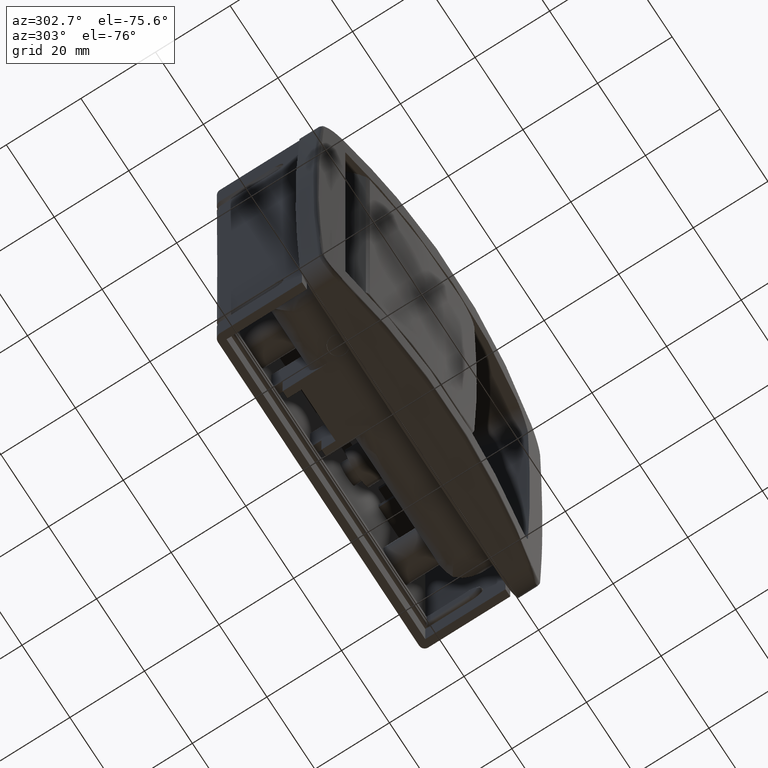
[diagram: clean part render]
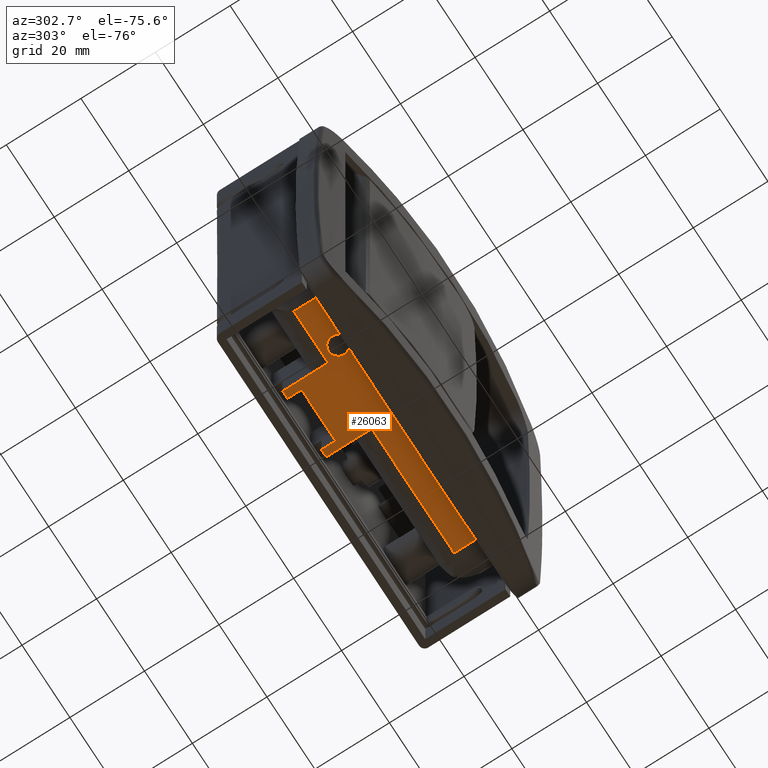
[diagram: same view with one face highlighted and labeled with its STEP entity id]
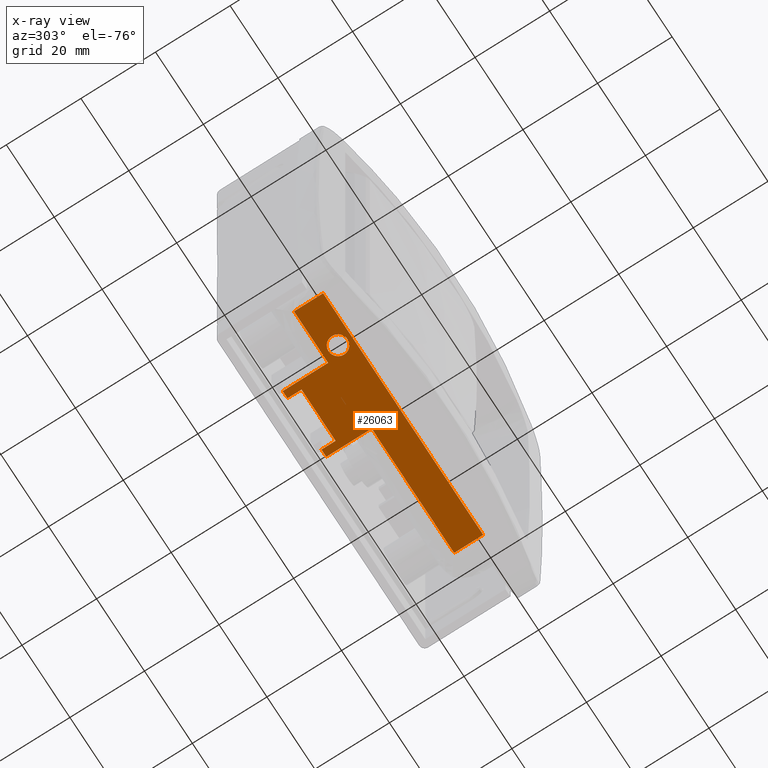
[diagram: x-ray of the same camera — body ghosted, the highlighted face saturated]
A machine part, auxiliary view. The second image highlights one B-rep face of the part: STEP entity #26063.
The next image is the same camera in x-ray: the body ghosted, the highlighted face saturated — about 0% of this face is hidden behind the body in this view.
In plain terms, the highlighted face is a freeform B-spline surface patch.
Its self-contained STEP definition (entity closure, byte-faithful):
#20635=CARTESIAN_POINT('',(23.893221239034439,1.991723662467409,-56.999999999673989));
#20636=VERTEX_POINT('',#20635);
#20642=CARTESIAN_POINT('',(21.999995825361040,1.150000000003522,-56.999999999673989));
#20643=VERTEX_POINT('',#20642);
#20644=CARTESIAN_POINT('',(23.893221239034439,1.991723662467409,-56.999999999673989));
#20645=CARTESIAN_POINT('',(23.729502275315941,1.810147493549375,-56.999999999674010));
#20646=CARTESIAN_POINT('',(23.401150699360642,1.537737943167668,-56.999999999673932));
#20647=CARTESIAN_POINT('',(22.755523859658322,1.230233375381703,-56.999999999674067));
#20648=CARTESIAN_POINT('',(22.288960967272420,1.149787930046870,-56.999999999673882));
#20649=CARTESIAN_POINT('',(21.999995825361040,1.150000000003522,-56.999999999673989));
#20650=B_SPLINE_CURVE_WITH_KNOTS('',3,(#20644,#20645,#20646,#20647,#20648,#20649),.UNSPECIFIED.,.F.,.U.,(4,1,1,4),(0.000000061027638,0.733457412275170,1.266844821769885,2.133663060100518),.UNSPECIFIED.);
#20651=EDGE_CURVE('',#20636,#20643,#20650,.T.);
#20653=CARTESIAN_POINT('',(19.449999999988751,3.700000000000105,-56.999999999674003));
#20654=VERTEX_POINT('',#20653);
#20655=CARTESIAN_POINT('',(21.999995825361040,1.150000000003522,-56.999999999673989));
#20656=CARTESIAN_POINT('',(21.666168371717049,1.149661999855580,-56.999999999674003));
#20657=CARTESIAN_POINT('',(21.061363360657690,1.270507558247340,-56.999999999674003));
#20658=CARTESIAN_POINT('',(20.395873997711629,1.680684311064813,-56.999999999674003));
#20659=CARTESIAN_POINT('',(19.976755536357391,2.121062805138263,-56.999999999674102));
#20660=CARTESIAN_POINT('',(19.685135151899331,2.581512528659528,-56.999999999673761));
#20661=CARTESIAN_POINT('',(19.493944012929671,3.115859006964239,-56.999999999674721));
#20662=CARTESIAN_POINT('',(19.449974399034350,3.512244155003712,-56.999999999673527));
#20663=CARTESIAN_POINT('',(19.449999999988751,3.700000000000105,-56.999999999674003));
#20664=B_SPLINE_CURVE_WITH_KNOTS('',3,(#20655,#20656,#20657,#20658,#20659,#20660,#20661,#20662,#20663),.UNSPECIFIED.,.F.,.U.,(4,1,1,1,1,1,4),(0.000000267692590,1.001407399888613,1.815097554782990,2.315747978024668,2.816451116207232,3.442346040555866,4.005628795123177),.UNSPECIFIED.);
#20665=EDGE_CURVE('',#20643,#20654,#20664,.T.);
#20667=CARTESIAN_POINT('',(22.000004174616461,6.249999999996689,-56.999999999674003));
#20668=VERTEX_POINT('',#20667);
#20669=CARTESIAN_POINT('',(19.449999999988751,3.700000000000105,-56.999999999674003));
#20670=CARTESIAN_POINT('',(19.449918858847440,3.929489028375675,-56.999999999673967));
#20671=CARTESIAN_POINT('',(19.509546651155439,4.367554195442644,-56.999999999674053));
#20672=CARTESIAN_POINT('',(19.742811837590718,4.930741767567115,-56.999999999673982));
#20673=CARTESIAN_POINT('',(20.080811128352391,5.410625156018187,-56.999999999673932));
#20674=CARTESIAN_POINT('',(20.532430085985659,5.820027348702046,-56.999999999674174));
#20675=CARTESIAN_POINT('',(21.186485147007371,6.159380354129319,-56.999999999673577));
#20676=CARTESIAN_POINT('',(21.707908901889461,6.250203442165448,-56.999999999674273));
#20677=CARTESIAN_POINT('',(22.000004174616461,6.249999999996689,-56.999999999674003));
#20678=B_SPLINE_CURVE_WITH_KNOTS('',3,(#20669,#20670,#20671,#20672,#20673,#20674,#20675,#20676,#20677),.UNSPECIFIED.,.F.,.U.,(4,1,1,1,1,1,4),(0.000000261976936,0.688449582759634,1.314367559688738,1.815099684209692,2.440897709591408,3.129402909542302,4.005633501019005),.UNSPECIFIED.);
#20679=EDGE_CURVE('',#20654,#20668,#20678,.T.);
#20681=CARTESIAN_POINT('',(24.336766447220899,4.720796980888254,-56.999999999674003));
#20682=VERTEX_POINT('',#20681);
#20683=CARTESIAN_POINT('',(22.000004174616461,6.249999999996689,-56.999999999674003));
#20684=CARTESIAN_POINT('',(22.277069888330601,6.250120494004303,-56.999999999674081));
#20685=CARTESIAN_POINT('',(22.846535964106199,6.156352707380149,-56.999999999673904));
#20686=CARTESIAN_POINT('',(23.491538874404789,5.805716528772405,-56.999999999674010));
#20687=CARTESIAN_POINT('',(24.006506257959192,5.315485538952853,-56.999999999674451));
#20688=CARTESIAN_POINT('',(24.232133113683350,4.960654065385267,-56.999999999673712));
#20689=CARTESIAN_POINT('',(24.336766447220899,4.720796980888254,-56.999999999674003));
#20690=B_SPLINE_CURVE_WITH_KNOTS('',3,(#20683,#20684,#20685,#20686,#20687,#20688,#20689),.UNSPECIFIED.,.F.,.U.,(4,1,1,1,4),(0.000000140330069,0.831191755057172,1.708549230352310,2.170319199229688,2.955330010595188),.UNSPECIFIED.);
#20691=EDGE_CURVE('',#20668,#20682,#20690,.T.);
#20726=CARTESIAN_POINT('',(24.549999999988749,3.700000000000105,-56.999999999674003));
#20727=VERTEX_POINT('',#20726);
#20728=CARTESIAN_POINT('',(24.336766447220899,4.720796980888254,-56.999999999674003));
#20729=CARTESIAN_POINT('',(24.477109222618871,4.400041884455482,-56.999999999673989));
#20730=CARTESIAN_POINT('',(24.550297077752830,4.050130629316390,-56.999999999674060));
#20731=CARTESIAN_POINT('',(24.549999999988749,3.700000000000105,-56.999999999674003));
#20732=B_SPLINE_CURVE_WITH_KNOTS('',3,(#20728,#20729,#20730,#20731),.UNSPECIFIED.,.F.,.U.,(4,4),(0.000000017337975,1.050266410184020),.UNSPECIFIED.);
#20733=EDGE_CURVE('',#20682,#20727,#20732,.T.);
#20735=CARTESIAN_POINT('',(24.549999999988749,3.700000000000105,-56.999999999674003));
#20736=CARTESIAN_POINT('',(24.550215022640540,3.407477773891363,-56.999999999673932));
#20737=CARTESIAN_POINT('',(24.441367642098928,2.783669143875820,-56.999999999674053));
#20738=CARTESIAN_POINT('',(24.115609719687431,2.237620208241991,-56.999999999674017));
#20739=CARTESIAN_POINT('',(23.893221239034439,1.991723662467409,-56.999999999673989));
#20740=B_SPLINE_CURVE_WITH_KNOTS('',3,(#20735,#20736,#20737,#20738,#20739),.UNSPECIFIED.,.F.,.U.,(4,1,4),(0.000000061381578,0.877505535624873,1.871972732722237),.UNSPECIFIED.);
#20741=EDGE_CURVE('',#20727,#20636,#20740,.T.);
#23207=CARTESIAN_POINT('',(26.234088067961451,16.200000000005250,-56.999999999697202));
#23208=VERTEX_POINT('',#23207);
#23209=CARTESIAN_POINT('',(40.434088068140049,16.200000000005250,-56.999999999615603));
#23210=VERTEX_POINT('',#23209);
#23211=CARTESIAN_POINT('',(26.234088067961451,16.200000000005250,-56.999999999697202));
#23212=CARTESIAN_POINT('',(40.434088068140049,16.200000000005250,-56.999999999615603));
#23213=QUASI_UNIFORM_CURVE('',1,(#23211,#23212),.UNSPECIFIED.,.F.,.U.);
#23214=EDGE_CURVE('',#23208,#23210,#23213,.T.);
#23624=CARTESIAN_POINT('',(76.855638553449808,7.800000000000249,-56.999999999674003));
#23625=VERTEX_POINT('',#23624);
#23659=CARTESIAN_POINT('',(42.434088068140049,7.800000000000270,-56.999999999674003));
#23660=VERTEX_POINT('',#23659);
#23661=CARTESIAN_POINT('',(42.434088068140049,7.800000000000270,-56.999999999674003));
#23662=CARTESIAN_POINT('',(76.855638553449808,7.800000000000249,-56.999999999674003));
#23663=QUASI_UNIFORM_CURVE('',1,(#23661,#23662),.UNSPECIFIED.,.F.,.U.);
#23664=EDGE_CURVE('',#23660,#23625,#23663,.T.);
#23826=CARTESIAN_POINT('',(24.234088068140050,7.800000000000270,-56.999999999616300));
#23827=VERTEX_POINT('',#23826);
#23843=CARTESIAN_POINT('',(9.983683746465450,7.800000000000249,-56.999999999674003));
#23844=VERTEX_POINT('',#23843);
#23845=CARTESIAN_POINT('',(9.983683746465450,7.800000000000249,-56.999999999674003));
#23846=CARTESIAN_POINT('',(24.234088068140050,7.800000000000270,-56.999999999616300));
#23847=QUASI_UNIFORM_CURVE('',1,(#23845,#23846),.UNSPECIFIED.,.F.,.U.);
#23848=EDGE_CURVE('',#23844,#23827,#23847,.T.);
#24017=CARTESIAN_POINT('',(42.434088068140099,20.0,-56.999999999615000));
#24018=VERTEX_POINT('',#24017);
#24019=CARTESIAN_POINT('',(42.434088068140049,7.800000000000270,-56.999999999674003));
#24020=CARTESIAN_POINT('',(42.434088068140099,20.0,-56.999999999615000));
#24021=QUASI_UNIFORM_CURVE('',1,(#24019,#24020),.UNSPECIFIED.,.F.,.U.);
#24022=EDGE_CURVE('',#23660,#24018,#24021,.T.);
#24116=CARTESIAN_POINT('',(40.434088068140099,20.0,-56.999999999615000));
#24117=VERTEX_POINT('',#24116);
#24125=CARTESIAN_POINT('',(42.434088068140099,20.0,-56.999999999615000));
#24126=CARTESIAN_POINT('',(40.434088068140099,20.0,-56.999999999615000));
#24127=QUASI_UNIFORM_CURVE('',1,(#24125,#24126),.UNSPECIFIED.,.F.,.U.);
#24128=EDGE_CURVE('',#24018,#24117,#24127,.T.);
#24138=CARTESIAN_POINT('',(24.234088068140100,20.0,-56.999999999615000));
#24139=VERTEX_POINT('',#24138);
#24140=CARTESIAN_POINT('',(24.234088068140050,7.800000000000270,-56.999999999616300));
#24141=CARTESIAN_POINT('',(24.234088068140100,20.0,-56.999999999615000));
#24142=QUASI_UNIFORM_CURVE('',1,(#24140,#24141),.UNSPECIFIED.,.F.,.U.);
#24143=EDGE_CURVE('',#23827,#24139,#24142,.T.);
#24267=CARTESIAN_POINT('',(26.234088068140100,20.0,-56.999999999615000));
#24268=VERTEX_POINT('',#24267);
#24274=CARTESIAN_POINT('',(26.234088068140100,20.0,-56.999999999615000));
#24275=CARTESIAN_POINT('',(24.234088068140100,20.0,-56.999999999615000));
#24276=QUASI_UNIFORM_CURVE('',1,(#24274,#24275),.UNSPECIFIED.,.F.,.U.);
#24277=EDGE_CURVE('',#24268,#24139,#24276,.T.);
#24788=CARTESIAN_POINT('',(9.983683746465450,5.675067E-014,-56.999999999674003));
#24789=VERTEX_POINT('',#24788);
#24790=CARTESIAN_POINT('',(9.983683746465450,7.800000000000249,-56.999999999674003));
#24791=CARTESIAN_POINT('',(9.983683746465450,5.675067E-014,-56.999999999674003));
#24792=QUASI_UNIFORM_CURVE('',1,(#24790,#24791),.UNSPECIFIED.,.F.,.U.);
#24793=EDGE_CURVE('',#23844,#24789,#24792,.T.);
#25034=CARTESIAN_POINT('',(76.855638553449808,-3.197442E-011,-56.999999999674003));
#25035=VERTEX_POINT('',#25034);
#25036=CARTESIAN_POINT('',(76.855638553449808,-3.197442E-011,-56.999999999674003));
#25037=CARTESIAN_POINT('',(76.855638553449808,7.800000000000249,-56.999999999674003));
#25038=QUASI_UNIFORM_CURVE('',1,(#25036,#25037),.UNSPECIFIED.,.F.,.U.);
#25039=EDGE_CURVE('',#25035,#23625,#25038,.T.);
#25329=CARTESIAN_POINT('',(9.983683746465450,5.675067E-014,-56.999999999674003));
#25330=CARTESIAN_POINT('',(76.855638553449808,-3.197442E-011,-56.999999999674003));
#25331=QUASI_UNIFORM_CURVE('',1,(#25329,#25330),.UNSPECIFIED.,.F.,.U.);
#25332=EDGE_CURVE('',#24789,#25035,#25331,.T.);
#26005=CARTESIAN_POINT('',(40.434088068140049,16.200000000005250,-56.999999999615603));
#26006=CARTESIAN_POINT('',(40.434088068140099,20.0,-56.999999999615000));
#26007=QUASI_UNIFORM_CURVE('',1,(#26005,#26006),.UNSPECIFIED.,.F.,.U.);
#26008=EDGE_CURVE('',#23210,#24117,#26007,.T.);
#26024=CARTESIAN_POINT('',(26.234088067961451,16.200000000005250,-56.999999999697202));
#26025=CARTESIAN_POINT('',(26.234088068140100,20.0,-56.999999999615000));
#26026=QUASI_UNIFORM_CURVE('',1,(#26024,#26025),.UNSPECIFIED.,.F.,.U.);
#26027=EDGE_CURVE('',#23208,#24268,#26026,.T.);
#26036=CARTESIAN_POINT('',(6.643429344634933,-0.998999961269691,-56.999999999674003));
#26037=CARTESIAN_POINT('',(80.195889367989139,-0.998999961269691,-56.999999999674003));
#26038=CARTESIAN_POINT('',(6.643429344634933,20.999000497679521,-56.999999999674003));
#26039=CARTESIAN_POINT('',(80.195889367989139,20.999000497679521,-56.999999999674003));
#26040=B_SPLINE_SURFACE_WITH_KNOTS('',1,1,((#26036,#26038),(#26037,#26039)),.UNSPECIFIED.,.F.,.F.,.U.,(2,2),(2,2),(0.0,73.552460023354200),(0.0,21.998000458949210),.UNSPECIFIED.);
#26041=ORIENTED_EDGE('',*,*,#23214,.T.);
#26042=ORIENTED_EDGE('',*,*,#26008,.T.);
#26043=ORIENTED_EDGE('',*,*,#24128,.F.);
#26044=ORIENTED_EDGE('',*,*,#24022,.F.);
#26045=ORIENTED_EDGE('',*,*,#23664,.T.);
#26046=ORIENTED_EDGE('',*,*,#25039,.F.);
#26047=ORIENTED_EDGE('',*,*,#25332,.F.);
#26048=ORIENTED_EDGE('',*,*,#24793,.F.);
#26049=ORIENTED_EDGE('',*,*,#23848,.T.);
#26050=ORIENTED_EDGE('',*,*,#24143,.T.);
#26051=ORIENTED_EDGE('',*,*,#24277,.F.);
#26052=ORIENTED_EDGE('',*,*,#26027,.F.);
#26053=EDGE_LOOP('',(#26041,#26042,#26043,#26044,#26045,#26046,#26047,#26048,#26049,#26050,#26051,#26052));
#26054=FACE_OUTER_BOUND('',#26053,.T.);
#26055=ORIENTED_EDGE('',*,*,#20665,.F.);
#26056=ORIENTED_EDGE('',*,*,#20651,.F.);
#26057=ORIENTED_EDGE('',*,*,#20741,.F.);
#26058=ORIENTED_EDGE('',*,*,#20733,.F.);
#26059=ORIENTED_EDGE('',*,*,#20691,.F.);
#26060=ORIENTED_EDGE('',*,*,#20679,.F.);
#26061=EDGE_LOOP('',(#26055,#26056,#26057,#26058,#26059,#26060));
#26062=FACE_BOUND('',#26061,.T.);
#26063=ADVANCED_FACE('',(#26054,#26062),#26040,.F.);